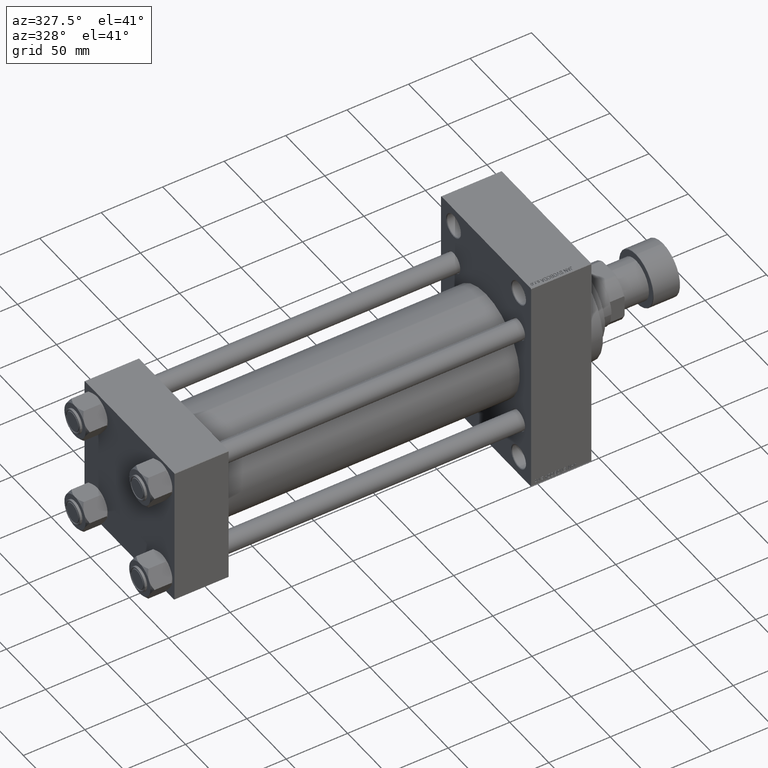
[diagram: clean part render]
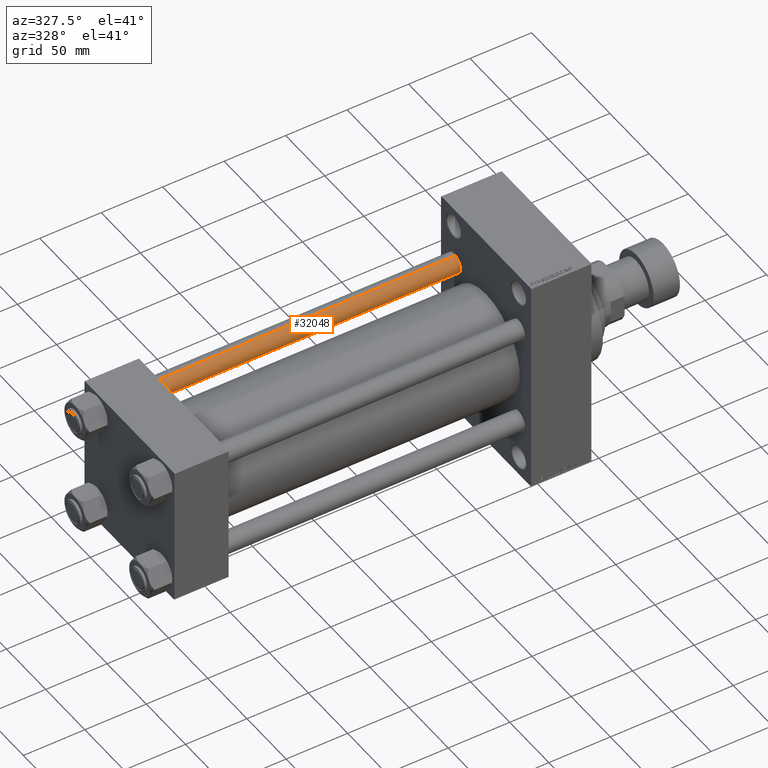
[diagram: same view with one face highlighted and labeled with its STEP entity id]
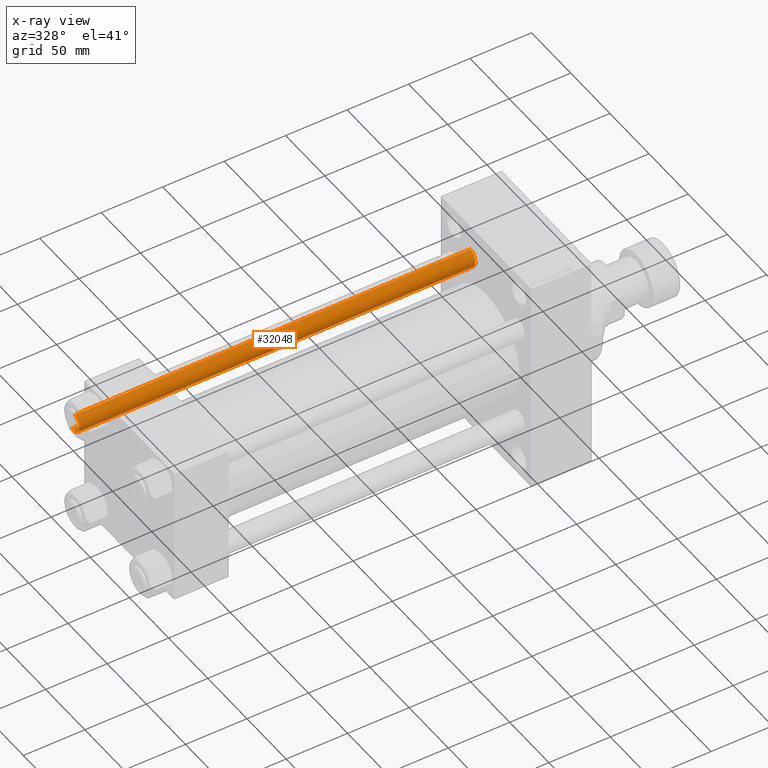
[diagram: x-ray of the same camera — body ghosted, the highlighted face saturated]
A machine part, auxiliary view. The second image highlights one B-rep face of the part: STEP entity #32048.
The next image is the same camera in x-ray: the body ghosted, the highlighted face saturated — about 0% of this face is hidden behind the body in this view.
In plain terms, the highlighted cylindrical surface (edge-blend (fillet) strip) has radius 8 mm, axis along (-1, -0, 0).
Its self-contained STEP definition (entity closure, byte-faithful):
#3104 = CIRCLE ( 'NONE', #30441, 8.000000000000000000 ) ;
#4824 = LINE ( 'NONE', #23648, #39644 ) ;
#4917 = AXIS2_PLACEMENT_3D ( 'NONE', #47105, #28776, #28532 ) ;
#6479 = CARTESIAN_POINT ( 'NONE',  ( -8.000000000000000000, 0.000000000000000000, 0.5000000000000004441 ) ) ;
#8288 = CIRCLE ( 'NONE', #12192, 8.000000000000000000 ) ;
#8625 = ORIENTED_EDGE ( 'NONE', *, *, #12526, .T. ) ;
#12192 = AXIS2_PLACEMENT_3D ( 'NONE', #34774, #26473, #41870 ) ;
#12526 = EDGE_CURVE ( 'NONE', #34670, #26698, #4824, .T. ) ;
#15554 = EDGE_CURVE ( 'NONE', #18497, #34473, #47068, .T. ) ;
#15560 = VECTOR ( 'NONE', #20672, 1000.000000000000000 ) ;
#16075 = DIRECTION ( 'NONE',  ( -0.000000000000000000, -0.000000000000000000, -1.000000000000000000 ) ) ;
#18185 = CARTESIAN_POINT ( 'NONE',  ( -8.000000000000000000, 0.000000000000000000, 322.5000000000000000 ) ) ;
#18497 = VERTEX_POINT ( 'NONE', #46149 ) ;
#19741 = ORIENTED_EDGE ( 'NONE', *, *, #24828, .T. ) ;
#20672 = DIRECTION ( 'NONE',  ( -0.000000000000000000, -0.000000000000000000, -1.000000000000000000 ) ) ;
#23648 = CARTESIAN_POINT ( 'NONE',  ( -8.000000000000000000, 0.000000000000000000, 323.0000000000000000 ) ) ;
#24492 = DIRECTION ( 'NONE',  ( -0.000000000000000000, -0.000000000000000000, 1.000000000000000000 ) ) ;
#24828 = EDGE_CURVE ( 'NONE', #26698, #34473, #3104, .T. ) ;
#26473 = DIRECTION ( 'NONE',  ( 0.000000000000000000, 0.000000000000000000, -1.000000000000000000 ) ) ;
#26698 = VERTEX_POINT ( 'NONE', #6479 ) ;
#27905 = DIRECTION ( 'NONE',  ( 1.000000000000000000, 0.000000000000000000, 0.000000000000000000 ) ) ;
#28110 = EDGE_LOOP ( 'NONE', ( #41110, #32980, #8625, #19741 ) ) ;
#28532 = DIRECTION ( 'NONE',  ( -1.000000000000000000, 0.000000000000000000, 0.000000000000000000 ) ) ;
#28776 = DIRECTION ( 'NONE',  ( -0.000000000000000000, -0.000000000000000000, -1.000000000000000000 ) ) ;
#30441 = AXIS2_PLACEMENT_3D ( 'NONE', #37967, #24492, #27905 ) ;
#32048 = ADVANCED_FACE ( 'NONE', ( #32201 ), #36349, .T. ) ;
#32201 = FACE_OUTER_BOUND ( 'NONE', #28110, .T. ) ;
#32980 = ORIENTED_EDGE ( 'NONE', *, *, #46909, .T. ) ;
#34473 = VERTEX_POINT ( 'NONE', #48352 ) ;
#34670 = VERTEX_POINT ( 'NONE', #18185 ) ;
#34774 = CARTESIAN_POINT ( 'NONE',  ( 0.000000000000000000, 0.000000000000000000, 322.5000000000000000 ) ) ;
#36068 = CARTESIAN_POINT ( 'NONE',  ( 8.000000000000000000, 9.797174393178825657E-16, 323.0000000000000000 ) ) ;
#36349 = CYLINDRICAL_SURFACE ( 'NONE', #4917, 8.000000000000000000 ) ;
#37967 = CARTESIAN_POINT ( 'NONE',  ( 0.000000000000000000, 0.000000000000000000, 0.5000000000000004441 ) ) ;
#39644 = VECTOR ( 'NONE', #16075, 1000.000000000000000 ) ;
#41110 = ORIENTED_EDGE ( 'NONE', *, *, #15554, .F. ) ;
#41870 = DIRECTION ( 'NONE',  ( 1.000000000000000000, 0.000000000000000000, 0.000000000000000000 ) ) ;
#46149 = CARTESIAN_POINT ( 'NONE',  ( 8.000000000000000000, 9.797174393178825657E-16, 322.5000000000000000 ) ) ;
#46909 = EDGE_CURVE ( 'NONE', #18497, #34670, #8288, .T. ) ;
#47068 = LINE ( 'NONE', #36068, #15560 ) ;
#47105 = CARTESIAN_POINT ( 'NONE',  ( 0.000000000000000000, 0.000000000000000000, 323.0000000000000000 ) ) ;
#48352 = CARTESIAN_POINT ( 'NONE',  ( 8.000000000000000000, 9.797174393178825657E-16, 0.5000000000000004441 ) ) ;